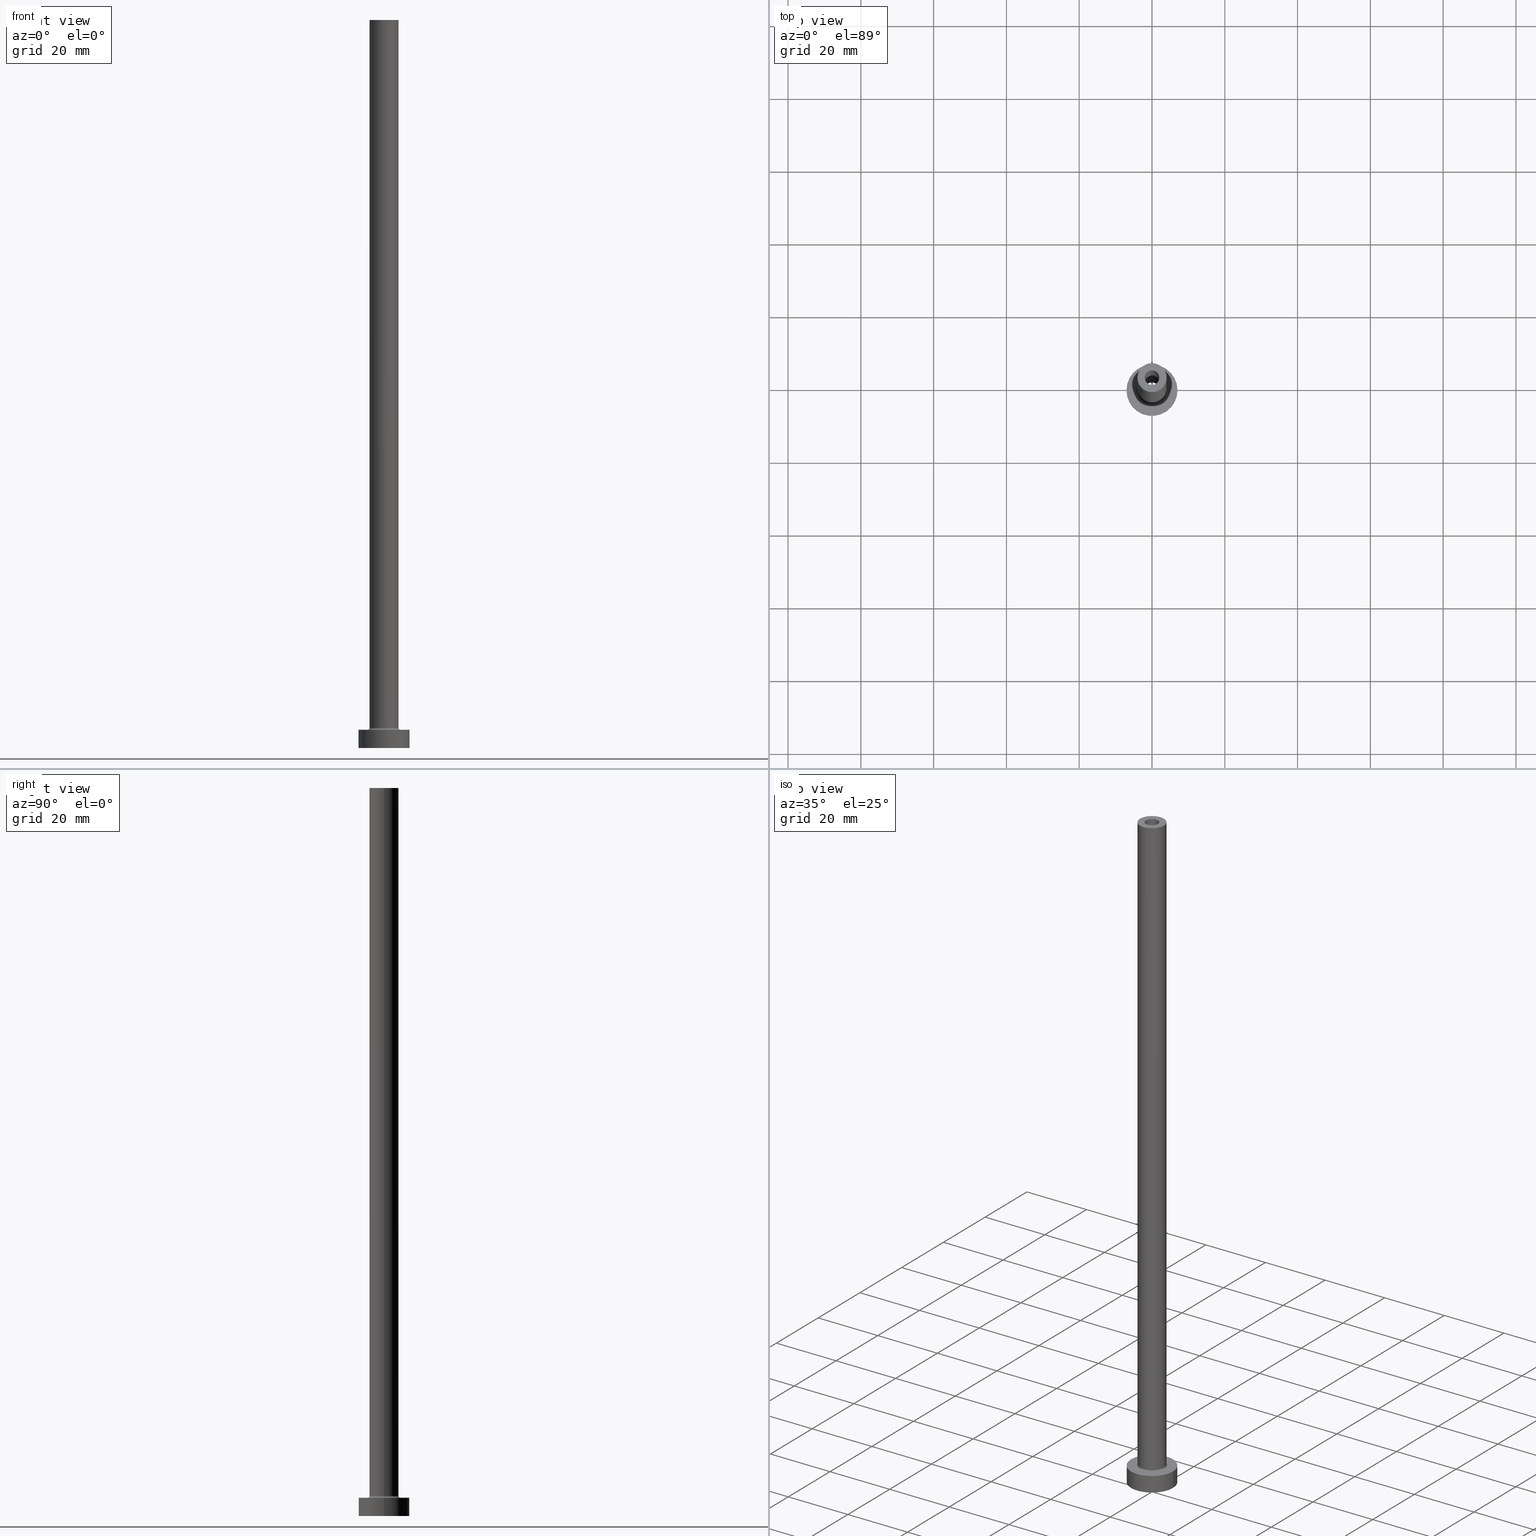
[diagram: canonical four-view strip — front | top / right | iso, engineering-drawing reading convention]
A machine part, canonical four-view strip (front | top / right | iso — engineering-drawing reading convention). The complete STEP part file that produces these views, byte-faithful:
ISO-10303-21;
HEADER;
FILE_DESCRIPTION (( 'STEP AP203' ),
    '1' );
FILE_NAME ('4d57.STEP',
    '2023-02-13T17:39:05',
    ( '' ),
    ( '' ),
    'SwSTEP 2.0',
    'SolidWorks 2019',
    '' );
FILE_SCHEMA (( 'CONFIG_CONTROL_DESIGN' ));
ENDSEC;

DATA;
#1 = DIRECTION ( 'NONE',  ( -0.000000000000000000, -0.000000000000000000, -1.000000000000000000 ) ) ;
#2 = VERTEX_POINT ( 'NONE', #295 ) ;
#3 = EDGE_CURVE ( 'NONE', #288, #327, #329, .T. ) ;
#4 = DIRECTION ( 'NONE',  ( 0.000000000000000000, 0.000000000000000000, 1.000000000000000000 ) ) ;
#5 = VERTEX_POINT ( 'NONE', #333 ) ;
#6 = LOCAL_TIME ( 18, 39, 5.000000000000000000, #193 ) ;
#7 = VECTOR ( 'NONE', #278, 1000.000000000000000 ) ;
#8 = CC_DESIGN_PERSON_AND_ORGANIZATION_ASSIGNMENT ( #119, #62, ( #459 ) ) ;
#9 = ORIENTED_EDGE ( 'NONE', *, *, #90, .F. ) ;
#10 = AXIS2_PLACEMENT_3D ( 'NONE', #113, #212, #82 ) ;
#11 = CARTESIAN_POINT ( 'NONE',  ( 0.000000000000000000, 0.000000000000000000, 0.000000000000000000 ) ) ;
#12 = EDGE_LOOP ( 'NONE', ( #143, #388, #84, #366 ) ) ;
#13 = DIRECTION ( 'NONE',  ( 0.000000000000000000, 0.000000000000000000, 1.000000000000000000 ) ) ;
#14 = CARTESIAN_POINT ( 'NONE',  ( 0.000000000000000000, 0.000000000000000000, 155.0000000000000284 ) ) ;
#15 = EDGE_CURVE ( 'NONE', #213, #240, #64, .T. ) ;
#16 = APPROVAL_DATE_TIME ( #122, #414 ) ;
#17 = ORIENTED_EDGE ( 'NONE', *, *, #308, .F. ) ;
#18 = AXIS2_PLACEMENT_3D ( 'NONE', #448, #235, #234 ) ;
#19 = APPROVAL_STATUS ( 'not_yet_approved' ) ;
#20 = FACE_OUTER_BOUND ( 'NONE', #108, .T. ) ;
#21 = CALENDAR_DATE ( 2023, 13, 2 ) ;
#22 = ADVANCED_FACE ( 'NONE', ( #20 ), #94, .T. ) ;
#23 = DIRECTION ( 'NONE',  ( -1.000000000000000000, 0.000000000000000000, 0.000000000000000000 ) ) ;
#24 = EDGE_CURVE ( 'NONE', #240, #213, #375, .T. ) ;
#25 = CARTESIAN_POINT ( 'NONE',  ( 0.000000000000000000, 0.000000000000000000, 200.0000000000000000 ) ) ;
#26 = PERSON_AND_ORGANIZATION ( #250, #34 ) ;
#27 = CARTESIAN_POINT ( 'NONE',  ( 0.000000000000000000, 0.000000000000000000, 0.000000000000000000 ) ) ;
#28 = CARTESIAN_POINT ( 'NONE',  ( 7.000000000000000000, 8.572527594031473190E-16, 5.000000000000000000 ) ) ;
#29 = CARTESIAN_POINT ( 'NONE',  ( -4.500000000000000888, 5.510910596163089556E-16, 5.500000000000005329 ) ) ;
#30 = EDGE_CURVE ( 'NONE', #205, #399, #323, .T. ) ;
#31 = EDGE_LOOP ( 'NONE', ( #146, #247, #395, #277 ) ) ;
#32 = PRODUCT_DEFINITION_FORMATION_WITH_SPECIFIED_SOURCE ( 'LIBOVOLN�', '', #77, .NOT_KNOWN. ) ;
#33 = AXIS2_PLACEMENT_3D ( 'NONE', #92, #231, #232 ) ;
#34 = ORGANIZATION ( 'NEUR�EN�', 'NEUR�EN�', '' ) ;
#35 = DIRECTION ( 'NONE',  ( 1.000000000000000000, 0.000000000000000000, -0.000000000000000000 ) ) ;
#36 = ORIENTED_EDGE ( 'NONE', *, *, #127, .F. ) ;
#37 = DIRECTION ( 'NONE',  ( -0.000000000000000000, -0.000000000000000000, -1.000000000000000000 ) ) ;
#38 = ORIENTED_EDGE ( 'NONE', *, *, #3, .T. ) ;
#39 = CYLINDRICAL_SURFACE ( 'NONE', #71, 7.000000000000000000 ) ;
#40 = CC_DESIGN_PERSON_AND_ORGANIZATION_ASSIGNMENT ( #226, #415, ( #453 ) ) ;
#41 = ORIENTED_EDGE ( 'NONE', *, *, #127, .T. ) ;
#42 = EDGE_CURVE ( 'NONE', #171, #403, #433, .T. ) ;
#43 = AXIS2_PLACEMENT_3D ( 'NONE', #404, #362, #294 ) ;
#44 = VECTOR ( 'NONE', #307, 1000.000000000000000 ) ;
#45 = ORIENTED_EDGE ( 'NONE', *, *, #292, .F. ) ;
#46 = FACE_BOUND ( 'NONE', #141, .T. ) ;
#47 = ORIENTED_EDGE ( 'NONE', *, *, #24, .T. ) ;
#48 = CARTESIAN_POINT ( 'NONE',  ( -2.149999999999999911, 0.000000000000000000, 161.0811183182043180 ) ) ;
#49 = ORIENTED_EDGE ( 'NONE', *, *, #308, .T. ) ;
#50 = APPLICATION_PROTOCOL_DEFINITION ( 'international standard', 'config_control_design', 1994, #311 ) ;
#51 = ORIENTED_EDGE ( 'NONE', *, *, #197, .F. ) ;
#52 = APPROVAL ( #19, 'NEUR�EN�' ) ;
#53 = DIRECTION ( 'NONE',  ( 0.000000000000000000, 0.000000000000000000, 1.000000000000000000 ) ) ;
#54 = PERSON_AND_ORGANIZATION_ROLE ( 'design_supplier' ) ;
#55 = EDGE_LOOP ( 'NONE', ( #9, #49, #435, #112 ) ) ;
#56 =( GEOMETRIC_REPRESENTATION_CONTEXT ( 3 ) GLOBAL_UNCERTAINTY_ASSIGNED_CONTEXT ( ( #446 ) ) GLOBAL_UNIT_ASSIGNED_CONTEXT ( ( #430, #427, #220 ) ) REPRESENTATION_CONTEXT ( 'NONE', 'WORKASPACE' ) );
#57 = CYLINDRICAL_SURFACE ( 'NONE', #337, 4.000000000000000000 ) ;
#58 = AXIS2_PLACEMENT_3D ( 'NONE', #105, #201, #243 ) ;
#59 = DIRECTION ( 'NONE',  ( -0.000000000000000000, -0.000000000000000000, -1.000000000000000000 ) ) ;
#60 = CC_DESIGN_PERSON_AND_ORGANIZATION_ASSIGNMENT ( #412, #447, ( #32 ) ) ;
#61 = CARTESIAN_POINT ( 'NONE',  ( -2.000000000000000000, 0.000000000000000000, 200.0000000000000000 ) ) ;
#62 = PERSON_AND_ORGANIZATION_ROLE ( 'creator' ) ;
#63 = DIRECTION ( 'NONE',  ( 0.000000000000000000, 0.000000000000000000, 1.000000000000000000 ) ) ;
#64 = CIRCLE ( 'NONE', #418, 2.000000000000000000 ) ;
#65 = CYLINDRICAL_SURFACE ( 'NONE', #298, 2.149999999999999911 ) ;
#66 = EDGE_CURVE ( 'NONE', #186, #2, #199, .T. ) ;
#67 = CARTESIAN_POINT ( 'NONE',  ( 0.000000000000000000, 0.000000000000000000, 5.000000000000000000 ) ) ;
#68 = ORIENTED_EDGE ( 'NONE', *, *, #194, .F. ) ;
#69 = CARTESIAN_POINT ( 'NONE',  ( -2.149999999999999911, 0.000000000000000000, 155.0000000000000284 ) ) ;
#70 = ORIENTED_EDGE ( 'NONE', *, *, #330, .T. ) ;
#71 = AXIS2_PLACEMENT_3D ( 'NONE', #425, #387, #275 ) ;
#72 = DIRECTION ( 'NONE',  ( 1.000000000000000000, 0.000000000000000000, 0.000000000000000000 ) ) ;
#73 = ORIENTED_EDGE ( 'NONE', *, *, #358, .F. ) ;
#74 = CYLINDRICAL_SURFACE ( 'NONE', #189, 2.000000000000000000 ) ;
#75 = ORIENTED_EDGE ( 'NONE', *, *, #258, .T. ) ;
#76 = DIRECTION ( 'NONE',  ( -1.000000000000000000, 0.000000000000000000, 0.000000000000000000 ) ) ;
#77 = PRODUCT ( '4d57', '4d57', '', ( #367 ) ) ;
#78 = ADVANCED_FACE ( 'NONE', ( #445 ), #65, .F. ) ;
#79 = CIRCLE ( 'NONE', #203, 2.149999999999999911 ) ;
#80 = CARTESIAN_POINT ( 'NONE',  ( -7.000000000000000000, 0.000000000000000000, 5.000000000000000000 ) ) ;
#81 = EDGE_LOOP ( 'NONE', ( #202, #461 ) ) ;
#82 = DIRECTION ( 'NONE',  ( 1.000000000000000000, 0.000000000000000000, -0.000000000000000000 ) ) ;
#83 = EDGE_LOOP ( 'NONE', ( #217, #73, #426, #136 ) ) ;
#84 = ORIENTED_EDGE ( 'NONE', *, *, #66, .T. ) ;
#85 = DIRECTION ( 'NONE',  ( 1.000000000000000000, 0.000000000000000000, 0.000000000000000000 ) ) ;
#86 = EDGE_LOOP ( 'NONE', ( #115, #370 ) ) ;
#87 = DIRECTION ( 'NONE',  ( 0.000000000000000000, 0.000000000000000000, -1.000000000000000000 ) ) ;
#88 = VERTEX_POINT ( 'NONE', #342 ) ;
#89 = FACE_OUTER_BOUND ( 'NONE', #148, .T. ) ;
#90 = EDGE_CURVE ( 'NONE', #88, #213, #416, .T. ) ;
#91 = CC_DESIGN_APPROVAL ( #340, ( #32 ) ) ;
#92 = CARTESIAN_POINT ( 'NONE',  ( 0.000000000000000000, 0.000000000000000000, 200.0000000000000000 ) ) ;
#93 = EDGE_CURVE ( 'NONE', #428, #336, #214, .T. ) ;
#94 = CYLINDRICAL_SURFACE ( 'NONE', #191, 7.000000000000000000 ) ;
#95 = CALENDAR_DATE ( 2023, 13, 2 ) ;
#96 = DIRECTION ( 'NONE',  ( -0.000000000000000000, -0.000000000000000000, -1.000000000000000000 ) ) ;
#97 = CARTESIAN_POINT ( 'NONE',  ( 2.149999999999999911, 2.632990618166809235E-16, 161.0811183182043180 ) ) ;
#98 = APPROVAL_PERSON_ORGANIZATION ( #26, #340, #444 ) ;
#99 = CARTESIAN_POINT ( 'NONE',  ( 0.000000000000000000, 0.000000000000000000, 0.000000000000000000 ) ) ;
#100 = ORIENTED_EDGE ( 'NONE', *, *, #24, .F. ) ;
#101 = FACE_OUTER_BOUND ( 'NONE', #81, .T. ) ;
#102 = LINE ( 'NONE', #28, #286 ) ;
#103 = AXIS2_PLACEMENT_3D ( 'NONE', #192, #343, #123 ) ;
#104 = DIRECTION ( 'NONE',  ( 1.224646799147353207E-16, 1.000000000000000000, -0.000000000000000000 ) ) ;
#105 = CARTESIAN_POINT ( 'NONE',  ( 0.000000000000000000, 0.000000000000000000, 161.0811183182043180 ) ) ;
#106 = EDGE_CURVE ( 'NONE', #327, #356, #449, .T. ) ;
#107 = EDGE_CURVE ( 'NONE', #356, #251, #364, .T. ) ;
#108 = EDGE_LOOP ( 'NONE', ( #45, #68, #257, #75 ) ) ;
#109 = CIRCLE ( 'NONE', #382, 7.000000000000000000 ) ;
#110 = AXIS2_PLACEMENT_3D ( 'NONE', #455, #133, #420 ) ;
#111 = FACE_OUTER_BOUND ( 'NONE', #390, .T. ) ;
#112 = ORIENTED_EDGE ( 'NONE', *, *, #15, .F. ) ;
#113 = CARTESIAN_POINT ( 'NONE',  ( 0.000000000000000000, 0.000000000000000000, 155.0000000000000284 ) ) ;
#114 = EDGE_LOOP ( 'NONE', ( #166, #363 ) ) ;
#115 = ORIENTED_EDGE ( 'NONE', *, *, #269, .T. ) ;
#116 = ADVANCED_FACE ( 'NONE', ( #262 ), #413, .F. ) ;
#117 = ORIENTED_EDGE ( 'NONE', *, *, #107, .F. ) ;
#118 = FACE_OUTER_BOUND ( 'NONE', #181, .T. ) ;
#119 = PERSON_AND_ORGANIZATION ( #250, #34 ) ;
#120 = ADVANCED_FACE ( 'NONE', ( #118 ), #406, .T. ) ;
#121 = CARTESIAN_POINT ( 'NONE',  ( 0.000000000000000000, 0.000000000000000000, 5.000000000000000000 ) ) ;
#122 = DATE_AND_TIME ( #270, #429 ) ;
#123 = DIRECTION ( 'NONE',  ( 1.000000000000000000, 0.000000000000000000, 0.000000000000000000 ) ) ;
#124 = DIRECTION ( 'NONE',  ( 1.000000000000000000, 0.000000000000000000, 0.000000000000000000 ) ) ;
#125 = APPROVAL_STATUS ( 'not_yet_approved' ) ;
#126 = CARTESIAN_POINT ( 'NONE',  ( 0.000000000000000000, 0.000000000000000000, 200.0000000000000000 ) ) ;
#127 = EDGE_CURVE ( 'NONE', #251, #356, #313, .T. ) ;
#128 = VECTOR ( 'NONE', #180, 1000.000000000000000 ) ;
#129 = CARTESIAN_POINT ( 'NONE',  ( 0.000000000000000000, 0.000000000000000000, 5.000000000000000000 ) ) ;
#130 = DIRECTION ( 'NONE',  ( 0.000000000000000000, 0.000000000000000000, 1.000000000000000000 ) ) ;
#131 = CARTESIAN_POINT ( 'NONE',  ( 0.000000000000000000, 0.000000000000000000, 5.000000000000000000 ) ) ;
#132 = ORIENTED_EDGE ( 'NONE', *, *, #139, .F. ) ;
#133 = DIRECTION ( 'NONE',  ( 0.000000000000000000, 0.000000000000000000, 1.000000000000000000 ) ) ;
#134 = AXIS2_PLACEMENT_3D ( 'NONE', #299, #63, #300 ) ;
#135 = CARTESIAN_POINT ( 'NONE',  ( 0.000000000000000000, 0.000000000000000000, 200.0000000000000000 ) ) ;
#136 = ORIENTED_EDGE ( 'NONE', *, *, #93, .F. ) ;
#137 = ADVANCED_BREP_SHAPE_REPRESENTATION ( '4d57', ( #149, #432 ), #56 ) ;
#138 = ADVANCED_FACE ( 'NONE', ( #339, #89 ), #408, .T. ) ;
#139 = EDGE_CURVE ( 'NONE', #238, #336, #351, .T. ) ;
#140 = CARTESIAN_POINT ( 'NONE',  ( 2.149999999999999911, 2.632990618166809235E-16, 0.000000000000000000 ) ) ;
#141 = EDGE_LOOP ( 'NONE', ( #36, #117 ) ) ;
#142 = CARTESIAN_POINT ( 'NONE',  ( 0.000000000000000000, 0.000000000000000000, 5.500000000000005329 ) ) ;
#143 = ORIENTED_EDGE ( 'NONE', *, *, #30, .F. ) ;
#144 = AXIS2_PLACEMENT_3D ( 'NONE', #67, #210, #35 ) ;
#145 = APPROVAL_PERSON_ORGANIZATION ( #267, #414, #407 ) ;
#146 = ORIENTED_EDGE ( 'NONE', *, *, #319, .F. ) ;
#147 = DIRECTION ( 'NONE',  ( 0.000000000000000000, 0.000000000000000000, 1.000000000000000000 ) ) ;
#148 = EDGE_LOOP ( 'NONE', ( #285, #282 ) ) ;
#149 = MANIFOLD_SOLID_BREP ( 'Odebrat vysunut�m4', #155 ) ;
#150 = FACE_OUTER_BOUND ( 'NONE', #83, .T. ) ;
#151 = DIRECTION ( 'NONE',  ( 1.000000000000000000, 0.000000000000000000, 0.000000000000000000 ) ) ;
#152 = CALENDAR_DATE ( 2023, 13, 2 ) ;
#153 = LOCAL_TIME ( 18, 39, 5.000000000000000000, #450 ) ;
#154 = CARTESIAN_POINT ( 'NONE',  ( 0.000000000000000000, 0.000000000000000000, 200.0000000000000000 ) ) ;
#155 = CLOSED_SHELL ( 'NONE', ( #116, #78, #334, #120, #272, #22, #293, #421, #176, #138, #381, #324, #379, #225 ) ) ;
#156 = DIRECTION ( 'NONE',  ( -1.000000000000000000, 0.000000000000000000, 0.000000000000000000 ) ) ;
#157 = DATE_AND_TIME ( #21, #284 ) ;
#158 = CARTESIAN_POINT ( 'NONE',  ( 0.000000000000000000, 0.000000000000000000, 5.000000000000000000 ) ) ;
#159 = AXIS2_PLACEMENT_3D ( 'NONE', #121, #163, #124 ) ;
#160 = PERSON_AND_ORGANIZATION ( #250, #34 ) ;
#161 = CARTESIAN_POINT ( 'NONE',  ( 0.000000000000000000, 0.000000000000000000, 0.000000000000000000 ) ) ;
#162 = SECURITY_CLASSIFICATION_LEVEL ( 'unclassified' ) ;
#163 = DIRECTION ( 'NONE',  ( -0.000000000000000000, -0.000000000000000000, -1.000000000000000000 ) ) ;
#164 = DIRECTION ( 'NONE',  ( 1.000000000000000000, 0.000000000000000000, 0.000000000000000000 ) ) ;
#165 = CARTESIAN_POINT ( 'NONE',  ( 2.000000000000000000, 2.449293598294705921E-16, 155.0000000000000284 ) ) ;
#166 = ORIENTED_EDGE ( 'NONE', *, *, #258, .F. ) ;
#167 = CC_DESIGN_PERSON_AND_ORGANIZATION_ASSIGNMENT ( #160, #188, ( #77 ) ) ;
#168 = DIRECTION ( 'NONE',  ( 0.000000000000000000, 0.000000000000000000, 1.000000000000000000 ) ) ;
#169 = ORIENTED_EDGE ( 'NONE', *, *, #269, .F. ) ;
#170 = FACE_BOUND ( 'NONE', #86, .T. ) ;
#171 = VERTEX_POINT ( 'NONE', #227 ) ;
#172 = CC_DESIGN_APPROVAL ( #52, ( #453 ) ) ;
#173 = CARTESIAN_POINT ( 'NONE',  ( 0.000000000000000000, 0.000000000000000000, 155.0000000000000284 ) ) ;
#174 = CC_DESIGN_DATE_AND_TIME_ASSIGNMENT ( #338, #233, ( #453 ) ) ;
#175 = VECTOR ( 'NONE', #87, 1000.000000000000000 ) ;
#176 = ADVANCED_FACE ( 'NONE', ( #302 ), #57, .T. ) ;
#177 = ORIENTED_EDGE ( 'NONE', *, *, #346, .F. ) ;
#178 = PLANE ( 'NONE',  #296 ) ;
#179 = ORIENTED_EDGE ( 'NONE', *, *, #255, .F. ) ;
#180 = DIRECTION ( 'NONE',  ( -0.000000000000000000, -0.000000000000000000, -1.000000000000000000 ) ) ;
#181 = EDGE_LOOP ( 'NONE', ( #326, #280, #400, #349 ) ) ;
#182 = VERTEX_POINT ( 'NONE', #61 ) ;
#183 = CARTESIAN_POINT ( 'NONE',  ( 4.500000000000000888, 0.000000000000000000, 5.000000000000002665 ) ) ;
#184 = DIRECTION ( 'NONE',  ( 1.000000000000000000, 0.000000000000000000, 0.000000000000000000 ) ) ;
#185 = DATE_AND_TIME ( #369, #6 ) ;
#186 = VERTEX_POINT ( 'NONE', #204 ) ;
#187 = VECTOR ( 'NONE', #279, 1000.000000000000000 ) ;
#188 = PERSON_AND_ORGANIZATION_ROLE ( 'design_owner' ) ;
#189 = AXIS2_PLACEMENT_3D ( 'NONE', #135, #452, #76 ) ;
#190 = DIRECTION ( 'NONE',  ( -0.000000000000000000, -0.000000000000000000, -1.000000000000000000 ) ) ;
#191 = AXIS2_PLACEMENT_3D ( 'NONE', #158, #59, #271 ) ;
#192 = CARTESIAN_POINT ( 'NONE',  ( 0.000000000000000000, 0.000000000000000000, 5.000000000000000000 ) ) ;
#193 = COORDINATED_UNIVERSAL_TIME_OFFSET ( 1, 0, .AHEAD. ) ;
#194 = EDGE_CURVE ( 'NONE', #399, #205, #109, .T. ) ;
#195 = DIRECTION ( 'NONE',  ( 1.000000000000000000, 0.000000000000000000, 0.000000000000000000 ) ) ;
#196 = DATE_TIME_ROLE ( 'creation_date' ) ;
#197 = EDGE_CURVE ( 'NONE', #182, #240, #318, .T. ) ;
#198 = CARTESIAN_POINT ( 'NONE',  ( 0.000000000000000000, 0.000000000000000000, 161.0811183182043180 ) ) ;
#199 = CIRCLE ( 'NONE', #383, 7.000000000000000000 ) ;
#200 = DIRECTION ( 'NONE',  ( 0.000000000000000000, 0.000000000000000000, -1.000000000000000000 ) ) ;
#201 = DIRECTION ( 'NONE',  ( 0.000000000000000000, 0.000000000000000000, -1.000000000000000000 ) ) ;
#202 = ORIENTED_EDGE ( 'NONE', *, *, #194, .T. ) ;
#203 = AXIS2_PLACEMENT_3D ( 'NONE', #173, #354, #422 ) ;
#204 = CARTESIAN_POINT ( 'NONE',  ( 7.000000000000000000, 8.572527594031473190E-16, 0.000000000000000000 ) ) ;
#205 = VERTEX_POINT ( 'NONE', #309 ) ;
#206 = AXIS2_PLACEMENT_3D ( 'NONE', #249, #13, #438 ) ;
#207 = CARTESIAN_POINT ( 'NONE',  ( 0.000000000000000000, 0.000000000000000000, 200.0000000000000000 ) ) ;
#208 = CYLINDRICAL_SURFACE ( 'NONE', #58, 2.149999999999999911 ) ;
#209 = PRODUCT_RELATED_PRODUCT_CATEGORY ( 'detail', '', ( #77 ) ) ;
#210 = DIRECTION ( 'NONE',  ( 0.000000000000000000, 0.000000000000000000, 1.000000000000000000 ) ) ;
#211 = CC_DESIGN_APPROVAL ( #414, ( #459 ) ) ;
#212 = DIRECTION ( 'NONE',  ( 0.000000000000000000, 0.000000000000000000, 1.000000000000000000 ) ) ;
#213 = VERTEX_POINT ( 'NONE', #165 ) ;
#214 = CIRCLE ( 'NONE', #159, 4.500000000000000888 ) ;
#215 = EDGE_CURVE ( 'NONE', #5, #238, #328, .T. ) ;
#216 = DIRECTION ( 'NONE',  ( 0.000000000000000000, 0.000000000000000000, 1.000000000000000000 ) ) ;
#217 = ORIENTED_EDGE ( 'NONE', *, *, #330, .F. ) ;
#218 = CARTESIAN_POINT ( 'NONE',  ( -4.000000000000000000, 0.000000000000000000, 200.0000000000000000 ) ) ;
#219 = ORIENTED_EDGE ( 'NONE', *, *, #346, .T. ) ;
#220 =( NAMED_UNIT ( * ) SI_UNIT ( $, .STERADIAN. ) SOLID_ANGLE_UNIT ( ) );
#221 = AXIS2_PLACEMENT_3D ( 'NONE', #25, #371, #195 ) ;
#222 = ORIENTED_EDGE ( 'NONE', *, *, #291, .F. ) ;
#223 = APPROVAL_ROLE ( '' ) ;
#224 = DIRECTION ( 'NONE',  ( 0.000000000000000000, 0.000000000000000000, 1.000000000000000000 ) ) ;
#225 = ADVANCED_FACE ( 'NONE', ( #314 ), #74, .F. ) ;
#226 = PERSON_AND_ORGANIZATION ( #250, #34 ) ;
#227 = CARTESIAN_POINT ( 'NONE',  ( 4.000000000000000000, 4.898587196589412829E-16, 200.0000000000000000 ) ) ;
#228 = AXIS2_PLACEMENT_3D ( 'NONE', #142, #365, #256 ) ;
#229 = AXIS2_PLACEMENT_3D ( 'NONE', #154, #190, #23 ) ;
#230 = TOROIDAL_SURFACE ( 'NONE', #206, 4.500000000000000888, 0.5000000000000000000 ) ;
#231 = DIRECTION ( 'NONE',  ( 0.000000000000000000, 0.000000000000000000, 1.000000000000000000 ) ) ;
#232 = DIRECTION ( 'NONE',  ( 1.000000000000000000, 0.000000000000000000, -0.000000000000000000 ) ) ;
#233 = DATE_TIME_ROLE ( 'classification_date' ) ;
#234 = DIRECTION ( 'NONE',  ( -1.000000000000000000, 0.000000000000000000, 0.000000000000000000 ) ) ;
#235 = DIRECTION ( 'NONE',  ( 0.000000000000000000, 0.000000000000000000, -1.000000000000000000 ) ) ;
#236 = AXIS2_PLACEMENT_3D ( 'NONE', #360, #216, #85 ) ;
#237 = DIRECTION ( 'NONE',  ( 0.000000000000000000, 0.000000000000000000, 1.000000000000000000 ) ) ;
#238 = VERTEX_POINT ( 'NONE', #241 ) ;
#239 = CARTESIAN_POINT ( 'NONE',  ( -2.000000000000000000, 0.000000000000000000, 200.0000000000000000 ) ) ;
#240 = VERTEX_POINT ( 'NONE', #456 ) ;
#241 = CARTESIAN_POINT ( 'NONE',  ( 4.000000000000000000, 4.898587196589412829E-16, 5.500000000000005329 ) ) ;
#242 = FACE_OUTER_BOUND ( 'NONE', #254, .T. ) ;
#243 = DIRECTION ( 'NONE',  ( -1.000000000000000000, 0.000000000000000000, 0.000000000000000000 ) ) ;
#244 = EDGE_LOOP ( 'NONE', ( #405, #353, #219, #41 ) ) ;
#245 = LINE ( 'NONE', #218, #128 ) ;
#246 = CIRCLE ( 'NONE', #43, 4.000000000000000000 ) ;
#247 = ORIENTED_EDGE ( 'NONE', *, *, #401, .F. ) ;
#248 = AXIS2_PLACEMENT_3D ( 'NONE', #129, #460, #273 ) ;
#249 = CARTESIAN_POINT ( 'NONE',  ( 0.000000000000000000, 0.000000000000000000, 5.500000000000005329 ) ) ;
#250 = PERSON ( 'NEUR�EN�', 'NEUR�EN�', 'NEUR�EN�', ('NEUR�EN�'), ('NEUR�EN�'), ('NEUR�EN�') ) ;
#251 = VERTEX_POINT ( 'NONE', #389 ) ;
#252 = ORIENTED_EDGE ( 'NONE', *, *, #106, .T. ) ;
#253 = LINE ( 'NONE', #48, #175 ) ;
#254 = EDGE_LOOP ( 'NONE', ( #439, #70, #169, #132 ) ) ;
#255 = EDGE_CURVE ( 'NONE', #182, #88, #454, .T. ) ;
#256 = DIRECTION ( 'NONE',  ( 1.000000000000000000, 0.000000000000000000, 0.000000000000000000 ) ) ;
#257 = ORIENTED_EDGE ( 'NONE', *, *, #359, .T. ) ;
#258 = EDGE_CURVE ( 'NONE', #2, #186, #274, .T. ) ;
#259 = APPROVAL_STATUS ( 'not_yet_approved' ) ;
#260 = DIRECTION ( 'NONE',  ( 1.000000000000000000, 0.000000000000000000, 0.000000000000000000 ) ) ;
#261 = COORDINATED_UNIVERSAL_TIME_OFFSET ( 1, 0, .AHEAD. ) ;
#262 = FACE_OUTER_BOUND ( 'NONE', #290, .T. ) ;
#263 = DESIGN_CONTEXT ( 'detailed design', #397, 'design' ) ;
#264 = VECTOR ( 'NONE', #1, 1000.000000000000000 ) ;
#265 = CIRCLE ( 'NONE', #373, 0.5000000000000004441 ) ;
#266 = DIRECTION ( 'NONE',  ( -0.000000000000000000, -0.000000000000000000, -1.000000000000000000 ) ) ;
#267 = PERSON_AND_ORGANIZATION ( #250, #34 ) ;
#268 = DIRECTION ( 'NONE',  ( 1.000000000000000000, 0.000000000000000000, 0.000000000000000000 ) ) ;
#269 = EDGE_CURVE ( 'NONE', #336, #428, #350, .T. ) ;
#270 = CALENDAR_DATE ( 2023, 13, 2 ) ;
#271 = DIRECTION ( 'NONE',  ( -1.000000000000000000, 0.000000000000000000, 0.000000000000000000 ) ) ;
#272 = ADVANCED_FACE ( 'NONE', ( #391 ), #39, .T. ) ;
#273 = DIRECTION ( 'NONE',  ( 1.000000000000000000, 0.000000000000000000, 0.000000000000000000 ) ) ;
#274 = CIRCLE ( 'NONE', #440, 7.000000000000000000 ) ;
#275 = DIRECTION ( 'NONE',  ( -1.000000000000000000, 0.000000000000000000, 0.000000000000000000 ) ) ;
#276 = DIRECTION ( 'NONE',  ( 1.000000000000000000, 0.000000000000000000, 0.000000000000000000 ) ) ;
#277 = ORIENTED_EDGE ( 'NONE', *, *, #215, .T. ) ;
#278 = DIRECTION ( 'NONE',  ( -0.000000000000000000, -0.000000000000000000, -1.000000000000000000 ) ) ;
#279 = DIRECTION ( 'NONE',  ( 0.000000000000000000, 0.000000000000000000, -1.000000000000000000 ) ) ;
#280 = ORIENTED_EDGE ( 'NONE', *, *, #319, .T. ) ;
#281 = FACE_OUTER_BOUND ( 'NONE', #114, .T. ) ;
#282 = ORIENTED_EDGE ( 'NONE', *, *, #42, .T. ) ;
#283 = CARTESIAN_POINT ( 'NONE',  ( -4.500000000000000888, 5.510910596163088569E-16, 5.000000000000002665 ) ) ;
#284 = LOCAL_TIME ( 18, 39, 5.000000000000000000, #344 ) ;
#285 = ORIENTED_EDGE ( 'NONE', *, *, #401, .T. ) ;
#286 = VECTOR ( 'NONE', #37, 1000.000000000000000 ) ;
#287 = FACE_BOUND ( 'NONE', #423, .T. ) ;
#288 = VERTEX_POINT ( 'NONE', #69 ) ;
#289 = DIRECTION ( 'NONE',  ( 1.000000000000000000, 0.000000000000000000, 0.000000000000000000 ) ) ;
#290 = EDGE_LOOP ( 'NONE', ( #361, #386, #100, #51 ) ) ;
#291 = EDGE_CURVE ( 'NONE', #327, #288, #79, .T. ) ;
#292 = EDGE_CURVE ( 'NONE', #205, #186, #102, .T. ) ;
#293 = ADVANCED_FACE ( 'NONE', ( #170, #101 ), #352, .T. ) ;
#294 = DIRECTION ( 'NONE',  ( 1.000000000000000000, 0.000000000000000000, 0.000000000000000000 ) ) ;
#295 = CARTESIAN_POINT ( 'NONE',  ( -7.000000000000000000, 0.000000000000000000, 0.000000000000000000 ) ) ;
#296 = AXIS2_PLACEMENT_3D ( 'NONE', #325, #4, #434 ) ;
#297 = APPROVAL_DATE_TIME ( #185, #52 ) ;
#298 = AXIS2_PLACEMENT_3D ( 'NONE', #198, #200, #156 ) ;
#299 = CARTESIAN_POINT ( 'NONE',  ( 0.000000000000000000, 0.000000000000000000, 155.0000000000000284 ) ) ;
#300 = DIRECTION ( 'NONE',  ( 1.000000000000000000, 0.000000000000000000, 0.000000000000000000 ) ) ;
#301 = CC_DESIGN_PERSON_AND_ORGANIZATION_ASSIGNMENT ( #306, #54, ( #32 ) ) ;
#302 = FACE_OUTER_BOUND ( 'NONE', #31, .T. ) ;
#303 = AXIS2_PLACEMENT_3D ( 'NONE', #384, #377, #451 ) ;
#304 = DIRECTION ( 'NONE',  ( 0.000000000000000000, 0.000000000000000000, 1.000000000000000000 ) ) ;
#305 = AXIS2_PLACEMENT_3D ( 'NONE', #368, #53, #184 ) ;
#306 = PERSON_AND_ORGANIZATION ( #250, #34 ) ;
#307 = DIRECTION ( 'NONE',  ( 0.000000000000000000, 0.000000000000000000, -1.000000000000000000 ) ) ;
#308 = EDGE_CURVE ( 'NONE', #88, #182, #409, .T. ) ;
#309 = CARTESIAN_POINT ( 'NONE',  ( 7.000000000000000000, 8.572527594031473190E-16, 5.000000000000000000 ) ) ;
#310 = VECTOR ( 'NONE', #376, 1000.000000000000000 ) ;
#311 = APPLICATION_CONTEXT ( 'configuration controlled 3d designs of mechanical parts and assemblies' ) ;
#312 = TOROIDAL_SURFACE ( 'NONE', #236, 4.500000000000000888, 0.5000000000000000000 ) ;
#313 = CIRCLE ( 'NONE', #303, 2.149999999999999911 ) ;
#314 = FACE_OUTER_BOUND ( 'NONE', #55, .T. ) ;
#315 = CIRCLE ( 'NONE', #228, 4.000000000000000000 ) ;
#316 = APPROVAL_PERSON_ORGANIZATION ( #378, #52, #223 ) ;
#317 = DIRECTION ( 'NONE',  ( -1.000000000000000000, 1.224646799147351482E-16, 0.000000000000000000 ) ) ;
#318 = LINE ( 'NONE', #239, #187 ) ;
#319 = EDGE_CURVE ( 'NONE', #171, #238, #458, .T. ) ;
#320 = DIRECTION ( 'NONE',  ( 1.000000000000000000, 0.000000000000000000, 0.000000000000000000 ) ) ;
#321 = ORIENTED_EDGE ( 'NONE', *, *, #107, .T. ) ;
#322 = AXIS2_PLACEMENT_3D ( 'NONE', #443, #380, #345 ) ;
#323 = CIRCLE ( 'NONE', #103, 7.000000000000000000 ) ;
#324 = ADVANCED_FACE ( 'NONE', ( #424 ), #208, .F. ) ;
#325 = CARTESIAN_POINT ( 'NONE',  ( 0.000000000000000000, 0.000000000000000000, 0.000000000000000000 ) ) ;
#326 = ORIENTED_EDGE ( 'NONE', *, *, #42, .F. ) ;
#327 = VERTEX_POINT ( 'NONE', #348 ) ;
#328 = CIRCLE ( 'NONE', #110, 4.000000000000000000 ) ;
#329 = CIRCLE ( 'NONE', #305, 2.149999999999999911 ) ;
#330 = EDGE_CURVE ( 'NONE', #5, #428, #265, .T. ) ;
#331 = ORIENTED_EDGE ( 'NONE', *, *, #3, .F. ) ;
#332 = CARTESIAN_POINT ( 'NONE',  ( -7.000000000000000000, 0.000000000000000000, 5.000000000000000000 ) ) ;
#333 = CARTESIAN_POINT ( 'NONE',  ( -4.000000000000000000, 0.000000000000000000, 5.500000000000005329 ) ) ;
#334 = ADVANCED_FACE ( 'NONE', ( #242 ), #230, .F. ) ;
#335 = APPLICATION_PROTOCOL_DEFINITION ( 'international standard', 'config_control_design', 1994, #397 ) ;
#336 = VERTEX_POINT ( 'NONE', #183 ) ;
#337 = AXIS2_PLACEMENT_3D ( 'NONE', #126, #266, #411 ) ;
#338 = DATE_AND_TIME ( #152, #153 ) ;
#339 = FACE_BOUND ( 'NONE', #457, .T. ) ;
#340 = APPROVAL ( #125, 'NEUR�EN�' ) ;
#341 = COORDINATED_UNIVERSAL_TIME_OFFSET ( 1, 0, .AHEAD. ) ;
#342 = CARTESIAN_POINT ( 'NONE',  ( 2.000000000000000000, 2.449293598294705921E-16, 200.0000000000000000 ) ) ;
#343 = DIRECTION ( 'NONE',  ( 0.000000000000000000, 0.000000000000000000, 1.000000000000000000 ) ) ;
#344 = COORDINATED_UNIVERSAL_TIME_OFFSET ( 1, 0, .AHEAD. ) ;
#345 = DIRECTION ( 'NONE',  ( 0.000000000000000000, 0.000000000000000000, -1.000000000000000000 ) ) ;
#346 = EDGE_CURVE ( 'NONE', #288, #251, #253, .T. ) ;
#347 = CARTESIAN_POINT ( 'NONE',  ( 2.000000000000000000, 2.449293598294705921E-16, 200.0000000000000000 ) ) ;
#348 = CARTESIAN_POINT ( 'NONE',  ( 2.149999999999999911, 2.632990618166809235E-16, 155.0000000000000284 ) ) ;
#349 = ORIENTED_EDGE ( 'NONE', *, *, #441, .F. ) ;
#350 = CIRCLE ( 'NONE', #248, 4.500000000000000888 ) ;
#351 = CIRCLE ( 'NONE', #322, 0.5000000000000004441 ) ;
#352 = PLANE ( 'NONE',  #144 ) ;
#353 = ORIENTED_EDGE ( 'NONE', *, *, #291, .T. ) ;
#354 = DIRECTION ( 'NONE',  ( 0.000000000000000000, 0.000000000000000000, 1.000000000000000000 ) ) ;
#355 = DIRECTION ( 'NONE',  ( 0.000000000000000000, 0.000000000000000000, 1.000000000000000000 ) ) ;
#356 = VERTEX_POINT ( 'NONE', #140 ) ;
#357 = CARTESIAN_POINT ( 'NONE',  ( -4.000000000000000000, 0.000000000000000000, 200.0000000000000000 ) ) ;
#358 = EDGE_CURVE ( 'NONE', #238, #5, #315, .T. ) ;
#359 = EDGE_CURVE ( 'NONE', #399, #2, #402, .T. ) ;
#360 = CARTESIAN_POINT ( 'NONE',  ( 0.000000000000000000, 0.000000000000000000, 5.500000000000005329 ) ) ;
#361 = ORIENTED_EDGE ( 'NONE', *, *, #255, .T. ) ;
#362 = DIRECTION ( 'NONE',  ( 0.000000000000000000, 0.000000000000000000, 1.000000000000000000 ) ) ;
#363 = ORIENTED_EDGE ( 'NONE', *, *, #66, .F. ) ;
#364 = CIRCLE ( 'NONE', #392, 2.149999999999999911 ) ;
#365 = DIRECTION ( 'NONE',  ( 0.000000000000000000, 0.000000000000000000, 1.000000000000000000 ) ) ;
#366 = ORIENTED_EDGE ( 'NONE', *, *, #359, .F. ) ;
#367 = MECHANICAL_CONTEXT ( 'NONE', #311, 'mechanical' ) ;
#368 = CARTESIAN_POINT ( 'NONE',  ( 0.000000000000000000, 0.000000000000000000, 155.0000000000000284 ) ) ;
#369 = CALENDAR_DATE ( 2023, 13, 2 ) ;
#370 = ORIENTED_EDGE ( 'NONE', *, *, #93, .T. ) ;
#371 = DIRECTION ( 'NONE',  ( 0.000000000000000000, 0.000000000000000000, 1.000000000000000000 ) ) ;
#372 = CC_DESIGN_DATE_AND_TIME_ASSIGNMENT ( #410, #196, ( #459 ) ) ;
#373 = AXIS2_PLACEMENT_3D ( 'NONE', #29, #104, #317 ) ;
#374 = SHAPE_DEFINITION_REPRESENTATION ( #394, #137 ) ;
#375 = CIRCLE ( 'NONE', #134, 2.000000000000000000 ) ;
#376 = DIRECTION ( 'NONE',  ( 0.000000000000000000, 0.000000000000000000, -1.000000000000000000 ) ) ;
#377 = DIRECTION ( 'NONE',  ( -0.000000000000000000, -0.000000000000000000, -1.000000000000000000 ) ) ;
#378 = PERSON_AND_ORGANIZATION ( #250, #34 ) ;
#379 = ADVANCED_FACE ( 'NONE', ( #287, #111 ), #398, .F. ) ;
#380 = DIRECTION ( 'NONE',  ( 0.000000000000000000, -1.000000000000000000, 0.000000000000000000 ) ) ;
#381 = ADVANCED_FACE ( 'NONE', ( #150 ), #312, .F. ) ;
#382 = AXIS2_PLACEMENT_3D ( 'NONE', #131, #355, #320 ) ;
#383 = AXIS2_PLACEMENT_3D ( 'NONE', #27, #304, #260 ) ;
#384 = CARTESIAN_POINT ( 'NONE',  ( 0.000000000000000000, 0.000000000000000000, 0.000000000000000000 ) ) ;
#385 = CARTESIAN_POINT ( 'NONE',  ( 4.000000000000000000, 4.898587196589412829E-16, 200.0000000000000000 ) ) ;
#386 = ORIENTED_EDGE ( 'NONE', *, *, #90, .T. ) ;
#387 = DIRECTION ( 'NONE',  ( -0.000000000000000000, -0.000000000000000000, -1.000000000000000000 ) ) ;
#388 = ORIENTED_EDGE ( 'NONE', *, *, #292, .T. ) ;
#389 = CARTESIAN_POINT ( 'NONE',  ( -2.149999999999999911, 0.000000000000000000, 0.000000000000000000 ) ) ;
#390 = EDGE_LOOP ( 'NONE', ( #331, #222 ) ) ;
#391 = FACE_OUTER_BOUND ( 'NONE', #12, .T. ) ;
#392 = AXIS2_PLACEMENT_3D ( 'NONE', #161, #96, #268 ) ;
#393 = LOCAL_TIME ( 18, 39, 5.000000000000000000, #341 ) ;
#394 = PRODUCT_DEFINITION_SHAPE ( 'NONE', 'NONE',  #459 ) ;
#395 = ORIENTED_EDGE ( 'NONE', *, *, #441, .T. ) ;
#396 = AXIS2_PLACEMENT_3D ( 'NONE', #207, #237, #72 ) ;
#397 = APPLICATION_CONTEXT ( 'configuration controlled 3d designs of mechanical parts and assemblies' ) ;
#398 = PLANE ( 'NONE',  #10 ) ;
#399 = VERTEX_POINT ( 'NONE', #332 ) ;
#400 = ORIENTED_EDGE ( 'NONE', *, *, #358, .T. ) ;
#401 = EDGE_CURVE ( 'NONE', #403, #171, #246, .T. ) ;
#402 = LINE ( 'NONE', #80, #264 ) ;
#403 = VERTEX_POINT ( 'NONE', #357 ) ;
#404 = CARTESIAN_POINT ( 'NONE',  ( 0.000000000000000000, 0.000000000000000000, 200.0000000000000000 ) ) ;
#405 = ORIENTED_EDGE ( 'NONE', *, *, #106, .F. ) ;
#406 = CYLINDRICAL_SURFACE ( 'NONE', #229, 4.000000000000000000 ) ;
#407 = APPROVAL_ROLE ( '' ) ;
#408 = PLANE ( 'NONE',  #33 ) ;
#409 = CIRCLE ( 'NONE', #417, 2.000000000000000000 ) ;
#410 = DATE_AND_TIME ( #95, #393 ) ;
#411 = DIRECTION ( 'NONE',  ( -1.000000000000000000, 0.000000000000000000, 0.000000000000000000 ) ) ;
#412 = PERSON_AND_ORGANIZATION ( #250, #34 ) ;
#413 = CYLINDRICAL_SURFACE ( 'NONE', #18, 2.000000000000000000 ) ;
#414 = APPROVAL ( #259, 'NEUR�EN�' ) ;
#415 = PERSON_AND_ORGANIZATION_ROLE ( 'classification_officer' ) ;
#416 = LINE ( 'NONE', #347, #44 ) ;
#417 = AXIS2_PLACEMENT_3D ( 'NONE', #419, #168, #164 ) ;
#418 = AXIS2_PLACEMENT_3D ( 'NONE', #14, #224, #151 ) ;
#419 = CARTESIAN_POINT ( 'NONE',  ( 0.000000000000000000, 0.000000000000000000, 200.0000000000000000 ) ) ;
#420 = DIRECTION ( 'NONE',  ( 1.000000000000000000, 0.000000000000000000, 0.000000000000000000 ) ) ;
#421 = ADVANCED_FACE ( 'NONE', ( #46, #281 ), #178, .F. ) ;
#422 = DIRECTION ( 'NONE',  ( 1.000000000000000000, 0.000000000000000000, 0.000000000000000000 ) ) ;
#423 = EDGE_LOOP ( 'NONE', ( #47, #436 ) ) ;
#424 = FACE_OUTER_BOUND ( 'NONE', #244, .T. ) ;
#425 = CARTESIAN_POINT ( 'NONE',  ( 0.000000000000000000, 0.000000000000000000, 5.000000000000000000 ) ) ;
#426 = ORIENTED_EDGE ( 'NONE', *, *, #139, .T. ) ;
#427 =( NAMED_UNIT ( * ) PLANE_ANGLE_UNIT ( ) SI_UNIT ( $, .RADIAN. ) );
#428 = VERTEX_POINT ( 'NONE', #283 ) ;
#429 = LOCAL_TIME ( 18, 39, 5.000000000000000000, #261 ) ;
#430 =( LENGTH_UNIT ( ) NAMED_UNIT ( * ) SI_UNIT ( .MILLI., .METRE. ) );
#431 = EDGE_LOOP ( 'NONE', ( #38, #252, #321, #177 ) ) ;
#432 = AXIS2_PLACEMENT_3D ( 'NONE', #11, #147, #289 ) ;
#433 = CIRCLE ( 'NONE', #221, 4.000000000000000000 ) ;
#434 = DIRECTION ( 'NONE',  ( 1.000000000000000000, 0.000000000000000000, -0.000000000000000000 ) ) ;
#435 = ORIENTED_EDGE ( 'NONE', *, *, #197, .T. ) ;
#436 = ORIENTED_EDGE ( 'NONE', *, *, #15, .T. ) ;
#437 = CC_DESIGN_SECURITY_CLASSIFICATION ( #453, ( #32 ) ) ;
#438 = DIRECTION ( 'NONE',  ( 1.000000000000000000, 0.000000000000000000, 0.000000000000000000 ) ) ;
#439 = ORIENTED_EDGE ( 'NONE', *, *, #215, .F. ) ;
#440 = AXIS2_PLACEMENT_3D ( 'NONE', #99, #130, #276 ) ;
#441 = EDGE_CURVE ( 'NONE', #403, #5, #245, .T. ) ;
#442 = APPROVAL_DATE_TIME ( #157, #340 ) ;
#443 = CARTESIAN_POINT ( 'NONE',  ( 4.500000000000000888, 0.000000000000000000, 5.500000000000005329 ) ) ;
#444 = APPROVAL_ROLE ( '' ) ;
#445 = FACE_OUTER_BOUND ( 'NONE', #431, .T. ) ;
#446 = UNCERTAINTY_MEASURE_WITH_UNIT (LENGTH_MEASURE( 1.000000000000000082E-05 ), #430, 'distance_accuracy_value', 'NONE');
#447 = PERSON_AND_ORGANIZATION_ROLE ( 'creator' ) ;
#448 = CARTESIAN_POINT ( 'NONE',  ( 0.000000000000000000, 0.000000000000000000, 200.0000000000000000 ) ) ;
#449 = LINE ( 'NONE', #97, #310 ) ;
#450 = COORDINATED_UNIVERSAL_TIME_OFFSET ( 1, 0, .AHEAD. ) ;
#451 = DIRECTION ( 'NONE',  ( 1.000000000000000000, 0.000000000000000000, 0.000000000000000000 ) ) ;
#452 = DIRECTION ( 'NONE',  ( 0.000000000000000000, 0.000000000000000000, -1.000000000000000000 ) ) ;
#453 = SECURITY_CLASSIFICATION ( '', '', #162 ) ;
#454 = CIRCLE ( 'NONE', #396, 2.000000000000000000 ) ;
#455 = CARTESIAN_POINT ( 'NONE',  ( 0.000000000000000000, 0.000000000000000000, 5.500000000000005329 ) ) ;
#456 = CARTESIAN_POINT ( 'NONE',  ( -2.000000000000000000, 0.000000000000000000, 155.0000000000000284 ) ) ;
#457 = EDGE_LOOP ( 'NONE', ( #179, #17 ) ) ;
#458 = LINE ( 'NONE', #385, #7 ) ;
#459 = PRODUCT_DEFINITION ( 'NEZN�M�', '', #32, #263 ) ;
#460 = DIRECTION ( 'NONE',  ( -0.000000000000000000, -0.000000000000000000, -1.000000000000000000 ) ) ;
#461 = ORIENTED_EDGE ( 'NONE', *, *, #30, .T. ) ;
ENDSEC;
END-ISO-10303-21;
